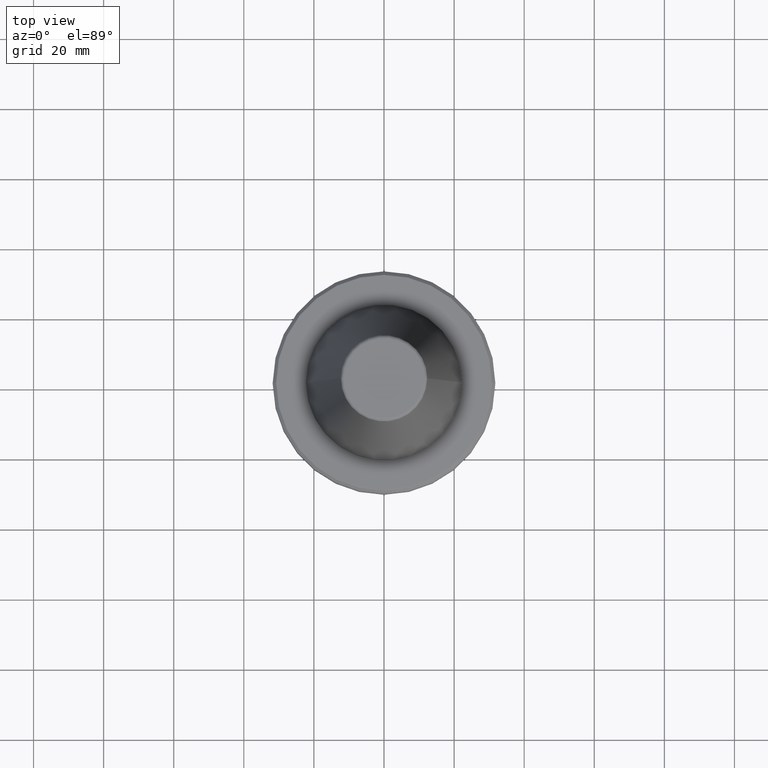
[diagram: clean part render]
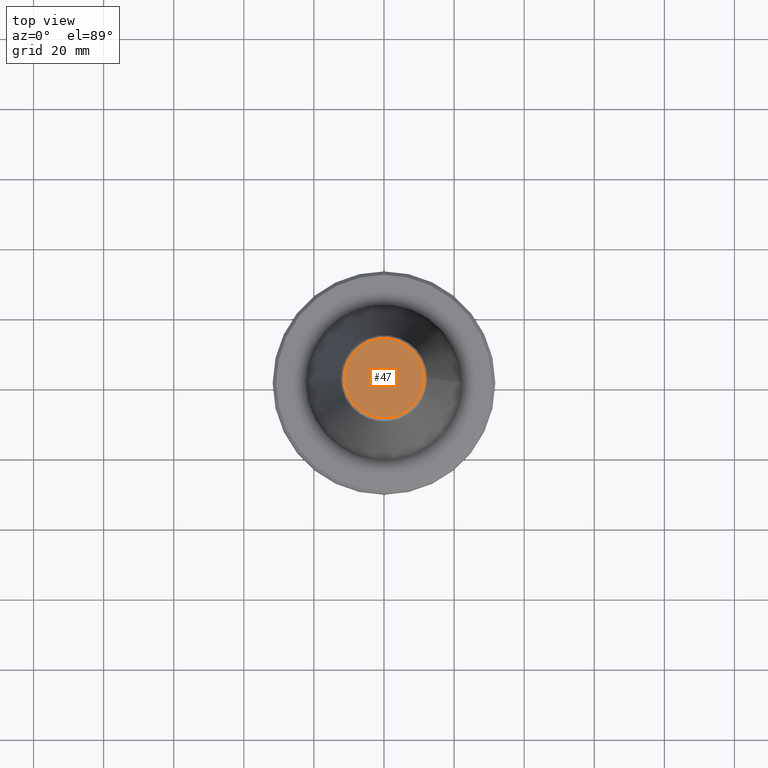
[diagram: same view with one face highlighted and labeled with its STEP entity id]
A machine part, top view. The second image highlights one B-rep face of the part: STEP entity #47.
In plain terms, the highlighted planar face has unit normal (0, -0, 1).
Its self-contained STEP definition (entity closure, byte-faithful):
#46 = DIRECTION ( 'NONE',  ( -0.0000000000000000000, -0.0000000000000000000, 1.000000000000000000 ) ) ;
#47 = ADVANCED_FACE ( 'NONE', ( #1044 ), #969, .T. ) ;
#70 = ORIENTED_EDGE ( 'NONE', *, *, #1020, .T. ) ;
#94 = CARTESIAN_POINT ( 'NONE',  ( 0.0000000000000000000, -8.337524199435086500E-014, 68.39999999999999100 ) ) ;
#189 = DIRECTION ( 'NONE',  ( -0.0000000000000000000, -0.0000000000000000000, 1.000000000000000000 ) ) ;
#201 = CARTESIAN_POINT ( 'NONE',  ( 11.38516258961893100, 0.0000000000000000000, 68.40000000000000600 ) ) ;
#228 = AXIS2_PLACEMENT_3D ( 'NONE', #719, #46, #715 ) ;
#296 = VERTEX_POINT ( 'NONE', #369 ) ;
#369 = CARTESIAN_POINT ( 'NONE',  ( -11.38516258961893100, 1.454871700296352000E-015, 68.40000000000000600 ) ) ;
#398 = AXIS2_PLACEMENT_3D ( 'NONE', #768, #189, #862 ) ;
#527 = VERTEX_POINT ( 'NONE', #201 ) ;
#531 = CIRCLE ( 'NONE', #228, 11.38516258961893100 ) ;
#715 = DIRECTION ( 'NONE',  ( 1.000000000000000000, 0.0000000000000000000, 0.0000000000000000000 ) ) ;
#719 = CARTESIAN_POINT ( 'NONE',  ( 0.0000000000000000000, 0.0000000000000000000, 68.40000000000000600 ) ) ;
#761 = DIRECTION ( 'NONE',  ( 1.000000000000000000, 0.0000000000000000000, 0.0000000000000000000 ) ) ;
#768 = CARTESIAN_POINT ( 'NONE',  ( 0.0000000000000000000, 0.0000000000000000000, 68.40000000000000600 ) ) ;
#794 = CIRCLE ( 'NONE', #398, 11.38516258961893100 ) ;
#801 = EDGE_CURVE ( 'NONE', #527, #296, #531, .T. ) ;
#809 = EDGE_LOOP ( 'NONE', ( #813, #70 ) ) ;
#813 = ORIENTED_EDGE ( 'NONE', *, *, #801, .T. ) ;
#862 = DIRECTION ( 'NONE',  ( 1.000000000000000000, 0.0000000000000000000, 0.0000000000000000000 ) ) ;
#969 = PLANE ( 'NONE',  #1043 ) ;
#1020 = EDGE_CURVE ( 'NONE', #296, #527, #794, .T. ) ;
#1043 = AXIS2_PLACEMENT_3D ( 'NONE', #94, #1062, #761 ) ;
#1044 = FACE_OUTER_BOUND ( 'NONE', #809, .T. ) ;
#1062 = DIRECTION ( 'NONE',  ( 0.0000000000000000000, -0.0000000000000000000, 1.000000000000000000 ) ) ;